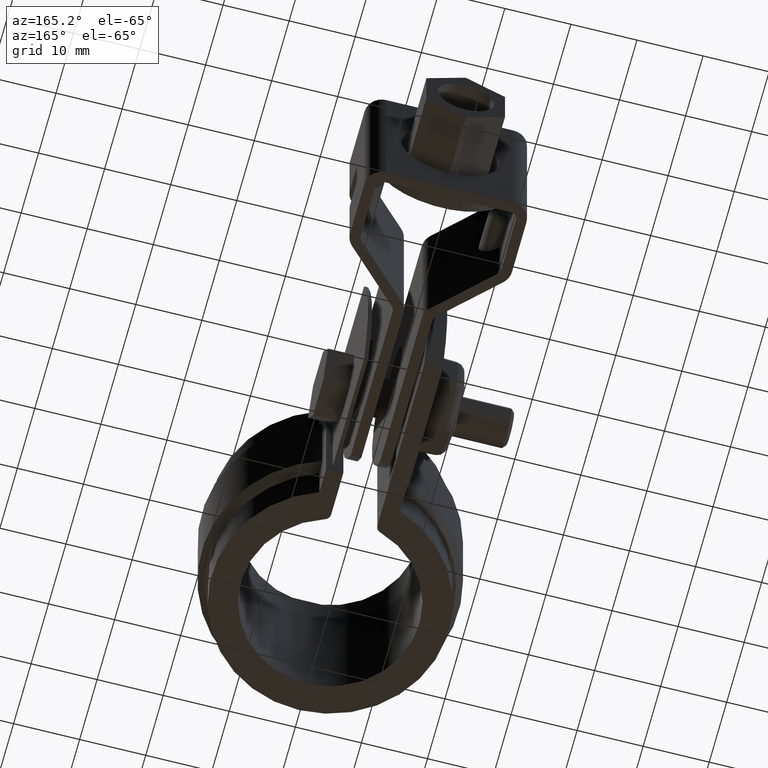
[diagram: clean part render]
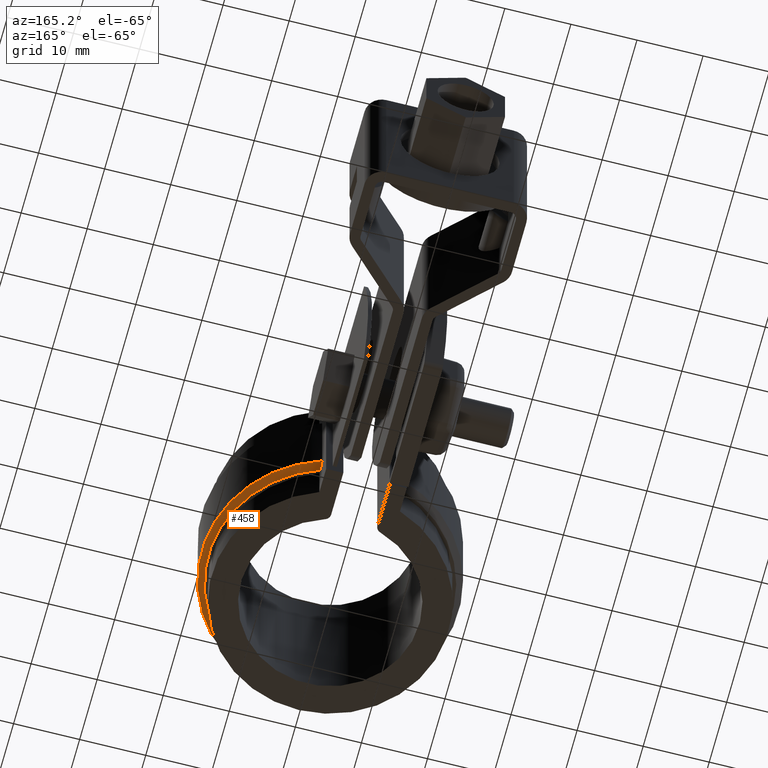
[diagram: same view with one face highlighted and labeled with its STEP entity id]
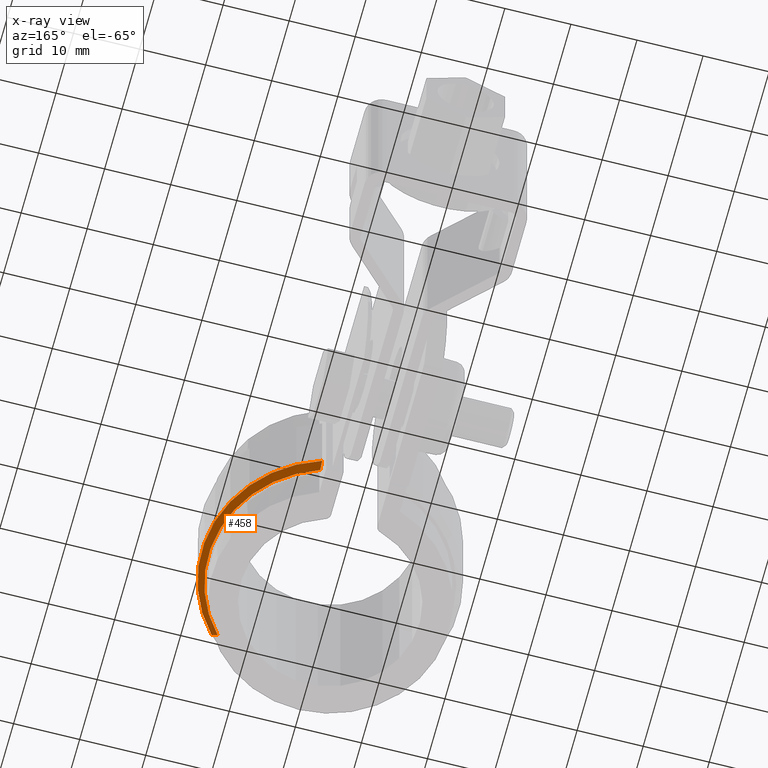
[diagram: x-ray of the same camera — body ghosted, the highlighted face saturated]
A machine part, auxiliary view. The second image highlights one B-rep face of the part: STEP entity #458.
The next image is the same camera in x-ray: the body ghosted, the highlighted face saturated — about 0% of this face is hidden behind the body in this view.
In plain terms, the highlighted conical surface has half-angle 45 deg.
Its self-contained STEP definition (entity closure, byte-faithful):
#458 = ADVANCED_FACE( '', ( #887 ), #888, .T. );
#887 = FACE_OUTER_BOUND( '', #1920, .T. );
#888 = CONICAL_SURFACE( '', #1921, 18.4350000000000, 0.785398163397448 );
#1920 = EDGE_LOOP( '', ( #4081, #4082, #4083, #4084 ) );
#1921 = AXIS2_PLACEMENT_3D( '', #4085, #4086, #4087 );
#4081 = ORIENTED_EDGE( '', *, *, #6301, .F. );
#4082 = ORIENTED_EDGE( '', *, *, #6282, .F. );
#4083 = ORIENTED_EDGE( '', *, *, #6302, .F. );
#4084 = ORIENTED_EDGE( '', *, *, #6276, .F. );
#4085 = CARTESIAN_POINT( '', ( -8.67361737988404E-016, 0.000000000000000, -20.0000000000000 ) );
#4086 = DIRECTION( '', ( 0.000000000000000, 0.000000000000000, 1.00000000000000 ) );
#4087 = DIRECTION( '', ( 1.00000000000000, 0.000000000000000, 0.000000000000000 ) );
#6276 = EDGE_CURVE( '', #7399, #7400, #7401, .F. );
#6282 = EDGE_CURVE( '', #7409, #7405, #7411, .T. );
#6301 = EDGE_CURVE( '', #7405, #7399, #7438, .T. );
#6302 = EDGE_CURVE( '', #7400, #7409, #7439, .T. );
#7399 = VERTEX_POINT( '', #10401 );
#7400 = VERTEX_POINT( '', #10402 );
#7401 = CIRCLE( '', #10403, 18.4350000000000 );
#7405 = VERTEX_POINT( '', #10408 );
#7409 = VERTEX_POINT( '', #10413 );
#7411 = CIRCLE( '', #10416, 19.4350000000000 );
#7438 = B_SPLINE_CURVE_WITH_KNOTS( '', 3, ( #10453, #10454, #10455, #10456 ), .UNSPECIFIED., .F., .F., ( 4, 4 ), ( 3.46944695195361E-018, 0.00145461426675659 ), .UNSPECIFIED. );
#7439 = LINE( '', #10457, #10458 );
#10401 = CARTESIAN_POINT( '', ( 6.10000000000001, 17.3965291078422, -20.0000000000000 ) );
#10402 = CARTESIAN_POINT( '', ( 13.8093023861862, -12.2127962648557, -20.0000000000000 ) );
#10403 = AXIS2_PLACEMENT_3D( '', #12295, #12296, #12297 );
#10408 = CARTESIAN_POINT( '', ( 6.10000000000001, 18.4528920497574, -19.0000000000000 ) );
#10413 = CARTESIAN_POINT( '', ( 14.5583830689193, -12.8752750424448, -19.0000000000000 ) );
#10416 = AXIS2_PLACEMENT_3D( '', #12307, #12308, #12309 );
#10453 = CARTESIAN_POINT( '', ( 6.10000000000000, 18.4528920497574, -19.0000000000000 ) );
#10454 = CARTESIAN_POINT( '', ( 6.10000000000000, 18.1012669802899, -19.3338564162014 ) );
#10455 = CARTESIAN_POINT( '', ( 6.10000000000001, 17.7491735695479, -19.6672205238523 ) );
#10456 = CARTESIAN_POINT( '', ( 6.10000000000001, 17.3965291078422, -20.0000000000000 ) );
#10457 = CARTESIAN_POINT( '', ( 13.8093023861862, -12.2127962648557, -20.0000000000000 ) );
#10458 = VECTOR( '', #12347, 1000.00000000000 );
#12295 = CARTESIAN_POINT( '', ( -8.67361737988404E-016, 0.000000000000000, -20.0000000000000 ) );
#12296 = DIRECTION( '', ( 0.000000000000000, 0.000000000000000, 1.00000000000000 ) );
#12297 = DIRECTION( '', ( 1.00000000000000, 0.000000000000000, 0.000000000000000 ) );
#12307 = CARTESIAN_POINT( '', ( -8.67361737988404E-016, 0.000000000000000, -19.0000000000000 ) );
#12308 = DIRECTION( '', ( 0.000000000000000, 0.000000000000000, 1.00000000000000 ) );
#12309 = DIRECTION( '', ( 1.00000000000000, 0.000000000000000, 0.000000000000000 ) );
#12347 = DIRECTION( '', ( 0.529680030416480, -0.468443236025451, 0.707106781186548 ) );